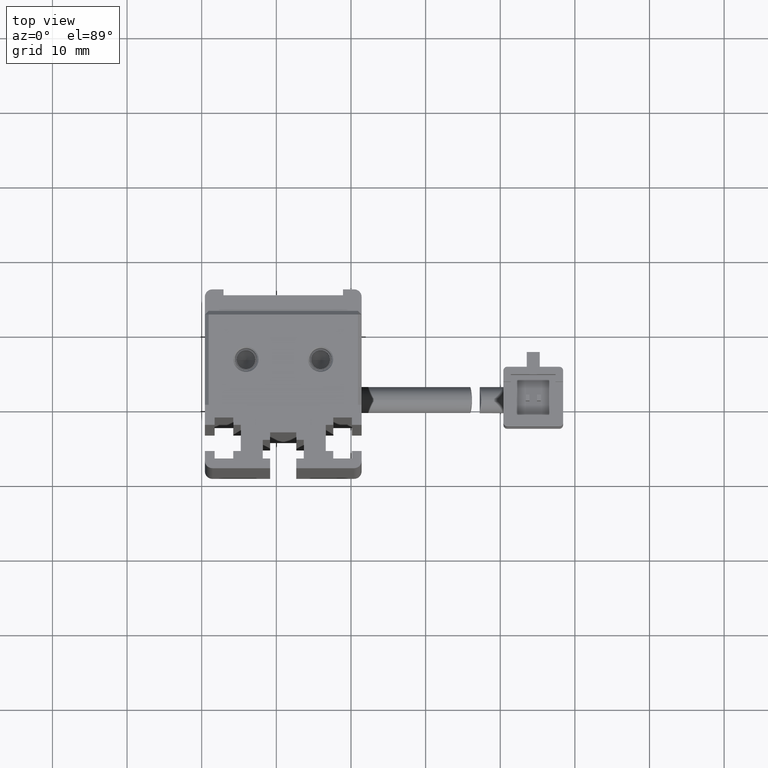
[diagram: clean part render]
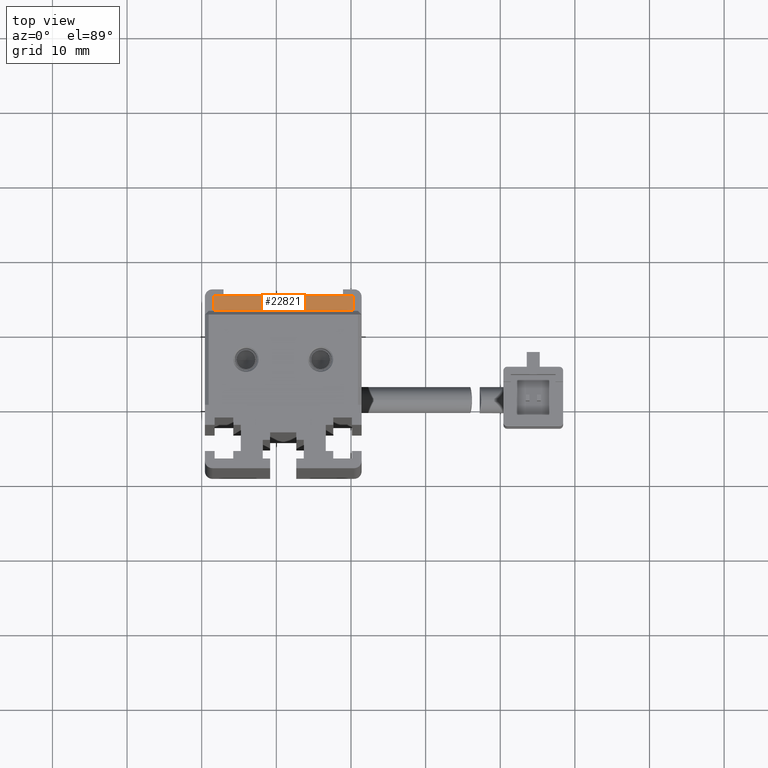
[diagram: same view with one face highlighted and labeled with its STEP entity id]
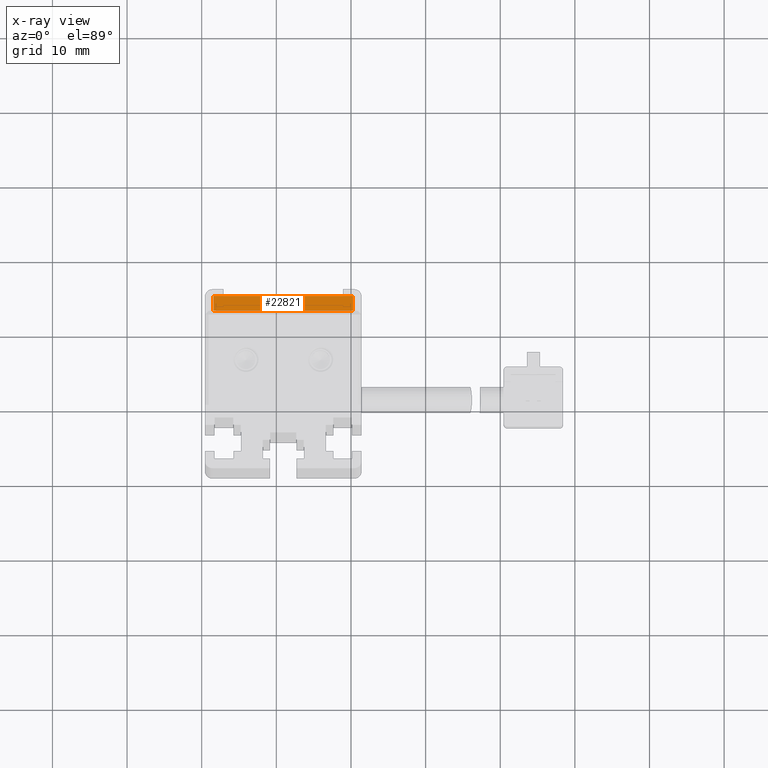
[diagram: x-ray of the same camera — body ghosted, the highlighted face saturated]
A machine part, top view. The second image highlights one B-rep face of the part: STEP entity #22821.
The next image is the same camera in x-ray: the body ghosted, the highlighted face saturated — about 0% of this face is hidden behind the body in this view.
In plain terms, the highlighted planar face has unit normal (-0, 0, -1).
Its self-contained STEP definition (entity closure, byte-faithful):
#146 = ORIENTED_EDGE ( 'NONE', *, *, #28812, .F. ) ;
#464 = FACE_OUTER_BOUND ( 'NONE', #28206, .T. ) ;
#533 = CARTESIAN_POINT ( 'NONE',  ( 31.57537974683542700, 32.09073232304837100, -74.99999999999998600 ) ) ;
#2686 = CARTESIAN_POINT ( 'NONE',  ( 31.57537974683542700, 34.09073232304837100, -74.99999999999998600 ) ) ;
#3508 = CARTESIAN_POINT ( 'NONE',  ( 31.57537974683542700, 34.09073232304837100, -74.99999999999998600 ) ) ;
#5904 = LINE ( 'NONE', #17865, #11236 ) ;
#7019 = VECTOR ( 'NONE', #21358, 1000.000000000000000 ) ;
#7057 = LINE ( 'NONE', #2686, #24680 ) ;
#8015 = EDGE_CURVE ( 'NONE', #26406, #11383, #5904, .T. ) ;
#9075 = PLANE ( 'NONE',  #17221 ) ;
#9375 = DIRECTION ( 'NONE',  ( 0.0000000000000000000, 1.000000000000000000, 0.0000000000000000000 ) ) ;
#11236 = VECTOR ( 'NONE', #22453, 1000.000000000000000 ) ;
#11383 = VERTEX_POINT ( 'NONE', #27553 ) ;
#13494 = LINE ( 'NONE', #25734, #29808 ) ;
#15904 = DIRECTION ( 'NONE',  ( 0.0000000000000000000, 1.000000000000000000, 0.0000000000000000000 ) ) ;
#16766 = CARTESIAN_POINT ( 'NONE',  ( 50.27537974683541900, 32.09073232304837100, -75.00000000000000000 ) ) ;
#17221 = AXIS2_PLACEMENT_3D ( 'NONE', #20744, #25383, #15904 ) ;
#17865 = CARTESIAN_POINT ( 'NONE',  ( 50.27537974683541900, 34.09073232304837100, -74.99999999999998600 ) ) ;
#18146 = VERTEX_POINT ( 'NONE', #3508 ) ;
#18990 = DIRECTION ( 'NONE',  ( 1.000000000000000000, 0.0000000000000000000, -1.548860246407863500E-017 ) ) ;
#20744 = CARTESIAN_POINT ( 'NONE',  ( 31.57537974683542700, 34.09073232304837100, -74.99999999999998600 ) ) ;
#21030 = CARTESIAN_POINT ( 'NONE',  ( 50.27537974683541900, 34.09073232304837100, -74.99999999999998600 ) ) ;
#21358 = DIRECTION ( 'NONE',  ( 1.000000000000000000, -1.972601640346686500E-032, -1.548860246407863500E-017 ) ) ;
#21735 = EDGE_CURVE ( 'NONE', #26958, #18146, #7057, .T. ) ;
#22247 = ORIENTED_EDGE ( 'NONE', *, *, #21735, .F. ) ;
#22453 = DIRECTION ( 'NONE',  ( -0.0000000000000000000, -1.000000000000000000, -0.0000000000000000000 ) ) ;
#22821 = ADVANCED_FACE ( 'NONE', ( #464 ), #9075, .F. ) ;
#24047 = EDGE_CURVE ( 'NONE', #26958, #11383, #29040, .T. ) ;
#24680 = VECTOR ( 'NONE', #9375, 1000.000000000000000 ) ;
#25383 = DIRECTION ( 'NONE',  ( -1.548860246407863500E-017, 0.0000000000000000000, -1.000000000000000000 ) ) ;
#25734 = CARTESIAN_POINT ( 'NONE',  ( 31.57537974683542700, 34.09073232304837100, -74.99999999999998600 ) ) ;
#26406 = VERTEX_POINT ( 'NONE', #21030 ) ;
#26958 = VERTEX_POINT ( 'NONE', #533 ) ;
#27553 = CARTESIAN_POINT ( 'NONE',  ( 50.27537974683541900, 32.09073232304837100, -75.00000000000000000 ) ) ;
#27651 = ORIENTED_EDGE ( 'NONE', *, *, #24047, .T. ) ;
#28206 = EDGE_LOOP ( 'NONE', ( #29250, #146, #22247, #27651 ) ) ;
#28812 = EDGE_CURVE ( 'NONE', #18146, #26406, #13494, .T. ) ;
#29040 = LINE ( 'NONE', #16766, #7019 ) ;
#29250 = ORIENTED_EDGE ( 'NONE', *, *, #8015, .F. ) ;
#29808 = VECTOR ( 'NONE', #18990, 1000.000000000000000 ) ;